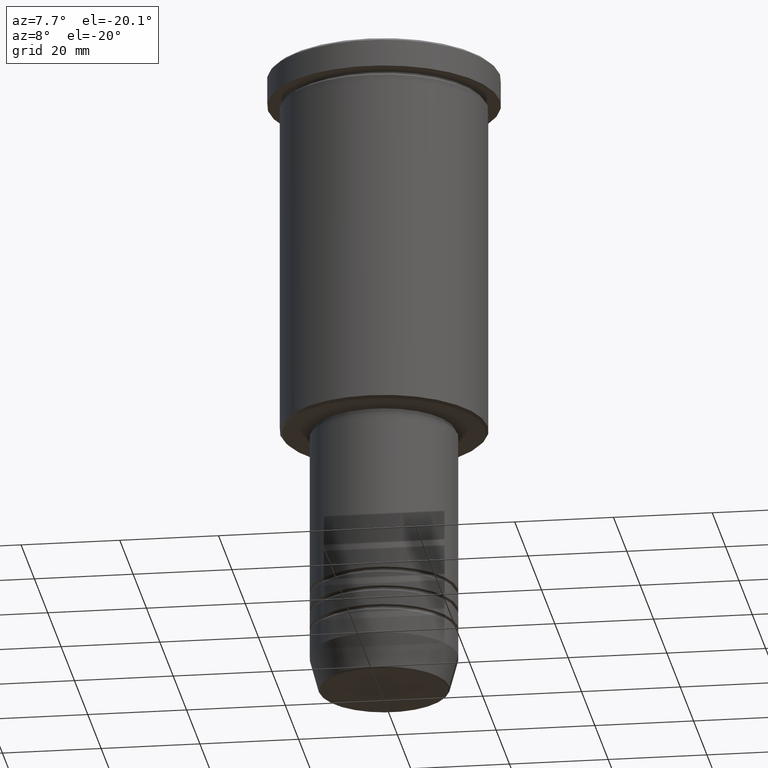
[diagram: clean part render]
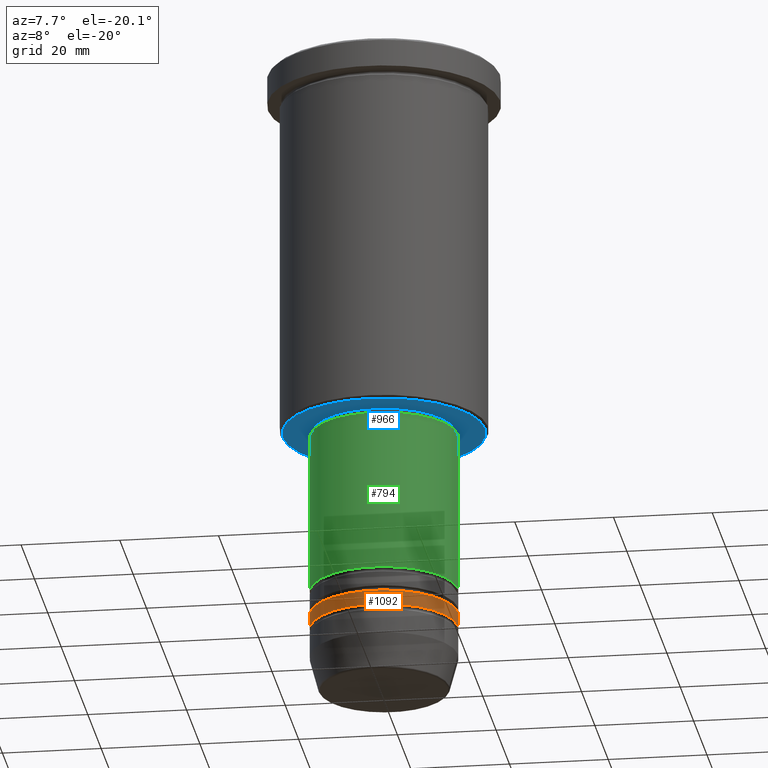
[diagram: same view with three faces highlighted in distinct colors, each labeled with its STEP entity id]
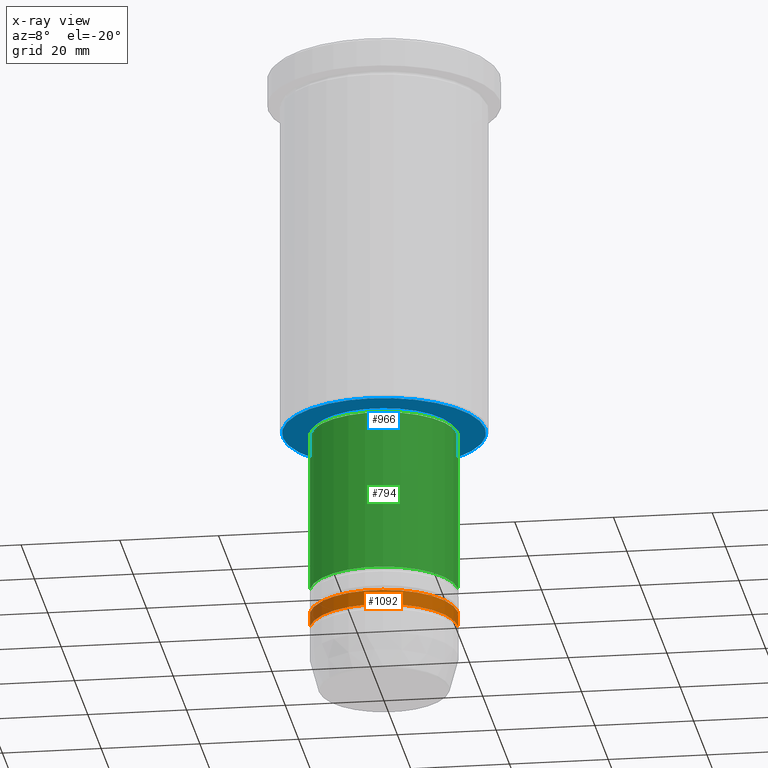
[diagram: x-ray of the same camera — body ghosted, the three highlighted faces saturated]
A machine part, auxiliary view with three faces highlighted in distinct colors.
The next image is the same camera in x-ray (body ghosted, the three faces saturated) — at least one of them is partly hidden behind the body in this view.
Their STEP definitions:

[orange] entity #1092 — the highlighted cylindrical surface (partial cylindrical patch) has radius 15 mm, axis along (-0, -0, 1).
#12 = EDGE_CURVE ( 'NONE', #729, #204, #684, .T. ) ;
#22 = CARTESIAN_POINT ( 'NONE',  ( 0.000000000000000000, 0.000000000000000000, 0.000000000000000000 ) ) ;
#64 = DIRECTION ( 'NONE',  ( -0.000000000000000000, -0.000000000000000000, 1.000000000000000000 ) ) ;
#108 = ORIENTED_EDGE ( 'NONE', *, *, #747, .T. ) ;
#128 = CYLINDRICAL_SURFACE ( 'NONE', #1111, 15.00000000000000000 ) ;
#158 = CARTESIAN_POINT ( 'NONE',  ( 0.000000000000000000, 0.000000000000000000, -114.9999999999998863 ) ) ;
#204 = VERTEX_POINT ( 'NONE', #765 ) ;
#227 = DIRECTION ( 'NONE',  ( -0.000000000000000000, -0.000000000000000000, 1.000000000000000000 ) ) ;
#238 = CARTESIAN_POINT ( 'NONE',  ( -15.00000000000000000, 1.836970198721029589E-15, 0.000000000000000000 ) ) ;
#309 = DIRECTION ( 'NONE',  ( -0.000000000000000000, -0.000000000000000000, 1.000000000000000000 ) ) ;
#416 = AXIS2_PLACEMENT_3D ( 'NONE', #1041, #64, #429 ) ;
#422 = VERTEX_POINT ( 'NONE', #806 ) ;
#429 = DIRECTION ( 'NONE',  ( 1.000000000000000000, 0.000000000000000000, 0.000000000000000000 ) ) ;
#433 = CIRCLE ( 'NONE', #1123, 15.00000000000000000 ) ;
#491 = DIRECTION ( 'NONE',  ( -0.000000000000000000, -0.000000000000000000, 1.000000000000000000 ) ) ;
#500 = EDGE_CURVE ( 'NONE', #204, #422, #433, .T. ) ;
#505 = DIRECTION ( 'NONE',  ( -0.000000000000000000, -0.000000000000000000, 1.000000000000000000 ) ) ;
#626 = CIRCLE ( 'NONE', #416, 15.00000000000000000 ) ;
#630 = EDGE_LOOP ( 'NONE', ( #678, #108, #885, #975 ) ) ;
#656 = LINE ( 'NONE', #1028, #698 ) ;
#678 = ORIENTED_EDGE ( 'NONE', *, *, #12, .F. ) ;
#684 = LINE ( 'NONE', #238, #1105 ) ;
#698 = VECTOR ( 'NONE', #309, 1000.000000000000000 ) ;
#729 = VERTEX_POINT ( 'NONE', #978 ) ;
#747 = EDGE_CURVE ( 'NONE', #729, #1119, #626, .T. ) ;
#765 = CARTESIAN_POINT ( 'NONE',  ( -15.00000000000000000, 1.836970198721029589E-15, -114.9999999999998863 ) ) ;
#766 = FACE_OUTER_BOUND ( 'NONE', #630, .T. ) ;
#806 = CARTESIAN_POINT ( 'NONE',  ( 15.00000000000000000, 0.000000000000000000, -114.9999999999998863 ) ) ;
#846 = DIRECTION ( 'NONE',  ( 1.000000000000000000, 0.000000000000000000, 0.000000000000000000 ) ) ;
#885 = ORIENTED_EDGE ( 'NONE', *, *, #1008, .T. ) ;
#929 = CARTESIAN_POINT ( 'NONE',  ( 15.00000000000000000, 0.000000000000000000, -117.9999999999998863 ) ) ;
#975 = ORIENTED_EDGE ( 'NONE', *, *, #500, .F. ) ;
#978 = CARTESIAN_POINT ( 'NONE',  ( -15.00000000000000000, 1.836970198721029589E-15, -117.9999999999998863 ) ) ;
#1008 = EDGE_CURVE ( 'NONE', #1119, #422, #656, .T. ) ;
#1028 = CARTESIAN_POINT ( 'NONE',  ( 15.00000000000000000, 0.000000000000000000, 0.000000000000000000 ) ) ;
#1041 = CARTESIAN_POINT ( 'NONE',  ( 0.000000000000000000, 0.000000000000000000, -117.9999999999998863 ) ) ;
#1050 = DIRECTION ( 'NONE',  ( 1.000000000000000000, 0.000000000000000000, 0.000000000000000000 ) ) ;
#1092 = ADVANCED_FACE ( 'NONE', ( #766 ), #128, .T. ) ;
#1105 = VECTOR ( 'NONE', #505, 1000.000000000000000 ) ;
#1111 = AXIS2_PLACEMENT_3D ( 'NONE', #22, #491, #846 ) ;
#1119 = VERTEX_POINT ( 'NONE', #929 ) ;
#1123 = AXIS2_PLACEMENT_3D ( 'NONE', #158, #227, #1050 ) ;

[blue] entity #966 — the highlighted planar face has unit normal (0, 0, -1).
#36 = AXIS2_PLACEMENT_3D ( 'NONE', #559, #923, #106 ) ;
#43 = CARTESIAN_POINT ( 'NONE',  ( 0.000000000000000000, 0.000000000000000000, -75.99999999999998579 ) ) ;
#92 = AXIS2_PLACEMENT_3D ( 'NONE', #518, #407, #771 ) ;
#106 = DIRECTION ( 'NONE',  ( -1.000000000000000000, 0.000000000000000000, 0.000000000000000000 ) ) ;
#116 = VERTEX_POINT ( 'NONE', #358 ) ;
#242 = VERTEX_POINT ( 'NONE', #337 ) ;
#254 = EDGE_CURVE ( 'NONE', #116, #1005, #1157, .T. ) ;
#266 = FACE_OUTER_BOUND ( 'NONE', #335, .T. ) ;
#308 = CIRCLE ( 'NONE', #697, 20.50000000000000355 ) ;
#315 = ORIENTED_EDGE ( 'NONE', *, *, #617, .T. ) ;
#335 = EDGE_LOOP ( 'NONE', ( #620, #315 ) ) ;
#337 = CARTESIAN_POINT ( 'NONE',  ( 20.50000000000000355, 0.000000000000000000, -76.00000000000000000 ) ) ;
#358 = CARTESIAN_POINT ( 'NONE',  ( 14.49999999999999822, 0.000000000000000000, -75.99999999999998579 ) ) ;
#407 = DIRECTION ( 'NONE',  ( -0.000000000000000000, -0.000000000000000000, 1.000000000000000000 ) ) ;
#472 = AXIS2_PLACEMENT_3D ( 'NONE', #43, #1143, #704 ) ;
#507 = EDGE_CURVE ( 'NONE', #1005, #116, #604, .T. ) ;
#518 = CARTESIAN_POINT ( 'NONE',  ( 0.000000000000000000, 0.000000000000000000, -75.99999999999998579 ) ) ;
#521 = DIRECTION ( 'NONE',  ( -1.000000000000000000, 0.000000000000000000, 0.000000000000000000 ) ) ;
#552 = ORIENTED_EDGE ( 'NONE', *, *, #254, .T. ) ;
#559 = CARTESIAN_POINT ( 'NONE',  ( 0.000000000000000000, 0.000000000000000000, -76.00000000000000000 ) ) ;
#604 = CIRCLE ( 'NONE', #92, 14.49999999999999822 ) ;
#617 = EDGE_CURVE ( 'NONE', #995, #242, #308, .T. ) ;
#619 = FACE_BOUND ( 'NONE', #1020, .T. ) ;
#620 = ORIENTED_EDGE ( 'NONE', *, *, #1113, .T. ) ;
#697 = AXIS2_PLACEMENT_3D ( 'NONE', #795, #823, #521 ) ;
#704 = DIRECTION ( 'NONE',  ( 1.000000000000000000, 0.000000000000000000, 0.000000000000000000 ) ) ;
#743 = ORIENTED_EDGE ( 'NONE', *, *, #507, .T. ) ;
#771 = DIRECTION ( 'NONE',  ( 1.000000000000000000, 0.000000000000000000, 0.000000000000000000 ) ) ;
#795 = CARTESIAN_POINT ( 'NONE',  ( 0.000000000000000000, 0.000000000000000000, -76.00000000000000000 ) ) ;
#809 = CARTESIAN_POINT ( 'NONE',  ( 0.000000000000000000, 21.00000000000000000, -76.00000000000000000 ) ) ;
#823 = DIRECTION ( 'NONE',  ( 0.000000000000000000, 0.000000000000000000, -1.000000000000000000 ) ) ;
#855 = CARTESIAN_POINT ( 'NONE',  ( -14.49999999999999822, 1.775737858763662015E-15, -75.99999999999998579 ) ) ;
#895 = AXIS2_PLACEMENT_3D ( 'NONE', #809, #937, #1018 ) ;
#923 = DIRECTION ( 'NONE',  ( 0.000000000000000000, 0.000000000000000000, -1.000000000000000000 ) ) ;
#937 = DIRECTION ( 'NONE',  ( 0.000000000000000000, 0.000000000000000000, -1.000000000000000000 ) ) ;
#941 = CARTESIAN_POINT ( 'NONE',  ( -20.50000000000000355, 2.541142108230758269E-15, -76.00000000000000000 ) ) ;
#966 = ADVANCED_FACE ( 'NONE', ( #266, #619 ), #981, .T. ) ;
#981 = PLANE ( 'NONE',  #895 ) ;
#995 = VERTEX_POINT ( 'NONE', #941 ) ;
#1005 = VERTEX_POINT ( 'NONE', #855 ) ;
#1018 = DIRECTION ( 'NONE',  ( -1.000000000000000000, 0.000000000000000000, -0.000000000000000000 ) ) ;
#1020 = EDGE_LOOP ( 'NONE', ( #552, #743 ) ) ;
#1113 = EDGE_CURVE ( 'NONE', #242, #995, #1162, .T. ) ;
#1143 = DIRECTION ( 'NONE',  ( -0.000000000000000000, -0.000000000000000000, 1.000000000000000000 ) ) ;
#1157 = CIRCLE ( 'NONE', #472, 14.49999999999999822 ) ;
#1162 = CIRCLE ( 'NONE', #36, 20.50000000000000355 ) ;

[green] entity #794 — the highlighted cylindrical surface (partial cylindrical patch) has radius 15 mm, axis along (-0, -0, 1).
#31 = DIRECTION ( 'NONE',  ( 1.000000000000000000, 0.000000000000000000, 0.000000000000000000 ) ) ;
#38 = VERTEX_POINT ( 'NONE', #61 ) ;
#61 = CARTESIAN_POINT ( 'NONE',  ( 15.00000000000000000, 0.000000000000000000, -76.99999999999998579 ) ) ;
#82 = ORIENTED_EDGE ( 'NONE', *, *, #826, .F. ) ;
#89 = CARTESIAN_POINT ( 'NONE',  ( 0.000000000000000000, 0.000000000000000000, -109.9999999999998863 ) ) ;
#124 = CARTESIAN_POINT ( 'NONE',  ( 0.000000000000000000, 0.000000000000000000, -76.99999999999998579 ) ) ;
#144 = CARTESIAN_POINT ( 'NONE',  ( 0.000000000000000000, 0.000000000000000000, 0.000000000000000000 ) ) ;
#232 = VECTOR ( 'NONE', #499, 1000.000000000000000 ) ;
#248 = DIRECTION ( 'NONE',  ( -0.000000000000000000, -0.000000000000000000, 1.000000000000000000 ) ) ;
#295 = CARTESIAN_POINT ( 'NONE',  ( 15.00000000000000000, 0.000000000000000000, 0.000000000000000000 ) ) ;
#375 = ORIENTED_EDGE ( 'NONE', *, *, #857, .T. ) ;
#396 = DIRECTION ( 'NONE',  ( -0.000000000000000000, -0.000000000000000000, 1.000000000000000000 ) ) ;
#417 = AXIS2_PLACEMENT_3D ( 'NONE', #124, #1129, #31 ) ;
#481 = LINE ( 'NONE', #295, #915 ) ;
#494 = ORIENTED_EDGE ( 'NONE', *, *, #1001, .F. ) ;
#499 = DIRECTION ( 'NONE',  ( -0.000000000000000000, -0.000000000000000000, 1.000000000000000000 ) ) ;
#575 = EDGE_LOOP ( 'NONE', ( #82, #375, #1073, #494 ) ) ;
#606 = LINE ( 'NONE', #953, #232 ) ;
#667 = VERTEX_POINT ( 'NONE', #1158 ) ;
#749 = CARTESIAN_POINT ( 'NONE',  ( 15.00000000000000000, 0.000000000000000000, -109.9999999999998863 ) ) ;
#776 = CYLINDRICAL_SURFACE ( 'NONE', #1159, 15.00000000000000000 ) ;
#794 = ADVANCED_FACE ( 'NONE', ( #957 ), #776, .T. ) ;
#826 = EDGE_CURVE ( 'NONE', #833, #667, #606, .T. ) ;
#833 = VERTEX_POINT ( 'NONE', #1081 ) ;
#857 = EDGE_CURVE ( 'NONE', #833, #1127, #1051, .T. ) ;
#881 = DIRECTION ( 'NONE',  ( 1.000000000000000000, 0.000000000000000000, 0.000000000000000000 ) ) ;
#915 = VECTOR ( 'NONE', #396, 1000.000000000000000 ) ;
#953 = CARTESIAN_POINT ( 'NONE',  ( -15.00000000000000000, 1.836970198721029589E-15, 0.000000000000000000 ) ) ;
#957 = FACE_OUTER_BOUND ( 'NONE', #575, .T. ) ;
#969 = AXIS2_PLACEMENT_3D ( 'NONE', #89, #1178, #1096 ) ;
#991 = CIRCLE ( 'NONE', #417, 15.00000000000000000 ) ;
#1001 = EDGE_CURVE ( 'NONE', #667, #38, #991, .T. ) ;
#1051 = CIRCLE ( 'NONE', #969, 15.00000000000000000 ) ;
#1058 = EDGE_CURVE ( 'NONE', #1127, #38, #481, .T. ) ;
#1073 = ORIENTED_EDGE ( 'NONE', *, *, #1058, .T. ) ;
#1081 = CARTESIAN_POINT ( 'NONE',  ( -15.00000000000000000, 1.836970198721029589E-15, -109.9999999999998863 ) ) ;
#1096 = DIRECTION ( 'NONE',  ( 1.000000000000000000, 0.000000000000000000, 0.000000000000000000 ) ) ;
#1127 = VERTEX_POINT ( 'NONE', #749 ) ;
#1129 = DIRECTION ( 'NONE',  ( -0.000000000000000000, -0.000000000000000000, 1.000000000000000000 ) ) ;
#1158 = CARTESIAN_POINT ( 'NONE',  ( -15.00000000000000000, 1.836970198721029589E-15, -76.99999999999998579 ) ) ;
#1159 = AXIS2_PLACEMENT_3D ( 'NONE', #144, #248, #881 ) ;
#1178 = DIRECTION ( 'NONE',  ( -0.000000000000000000, -0.000000000000000000, 1.000000000000000000 ) ) ;